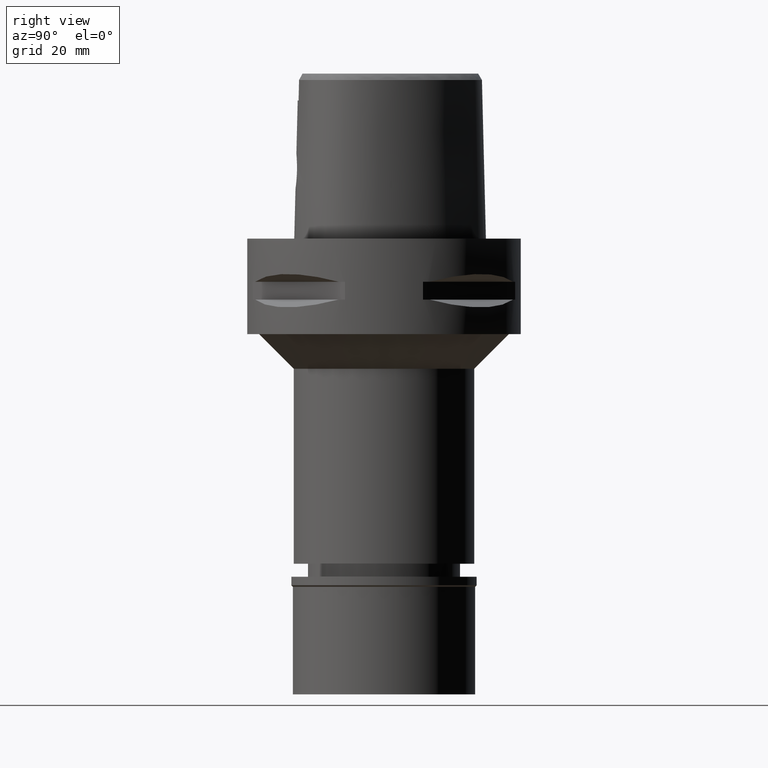
[diagram: clean part render]
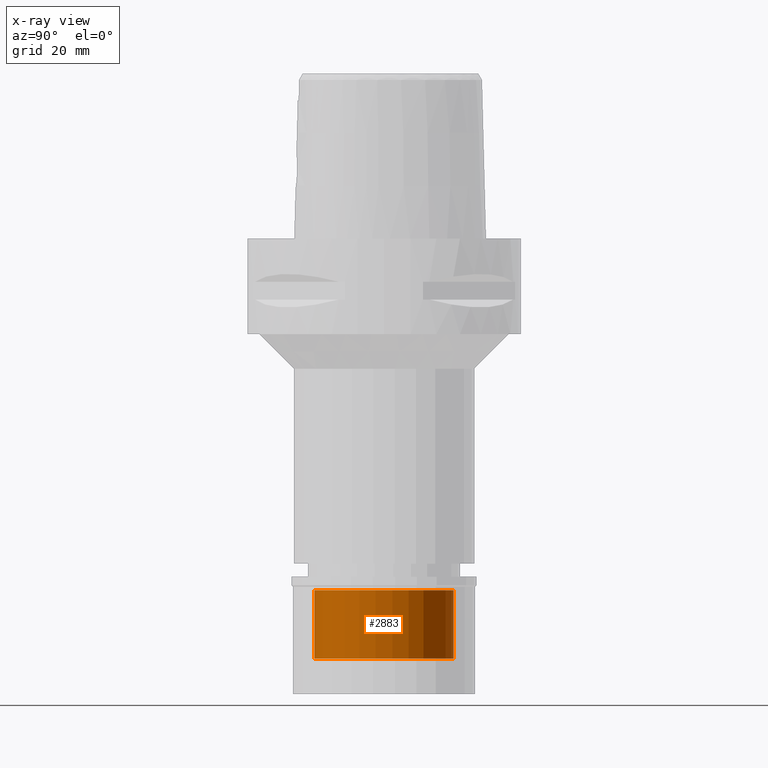
[diagram: x-ray — body ghosted, one internal face saturated and labeled with its STEP entity id]
A machine part, right view, then the same camera in x-ray: the body is ghosted and one INTERNAL B-rep face — a face not visible from any outside direction — is saturated and labeled: STEP entity #2883.
In plain terms, the highlighted cylindrical surface (partial cylindrical patch) has radius 16 mm, axis along (0, 0, -1).
Its self-contained STEP definition (entity closure, byte-faithful):
#23 = AXIS2_PLACEMENT_3D ( 'NONE', #4696, #2767, #3217 ) ;
#47 = LINE ( 'NONE', #880, #4343 ) ;
#496 = FACE_OUTER_BOUND ( 'NONE', #4438, .T. ) ;
#717 = CARTESIAN_POINT ( 'NONE',  ( 0.0000000000000000000, 0.0000000000000000000, -3.100000000000000089 ) ) ;
#750 = DIRECTION ( 'NONE',  ( 0.0000000000000000000, 0.0000000000000000000, 1.000000000000000000 ) ) ;
#776 = DIRECTION ( 'NONE',  ( 0.0000000000000000000, 0.0000000000000000000, 1.000000000000000000 ) ) ;
#880 = CARTESIAN_POINT ( 'NONE',  ( 0.0000000000000000000, 16.00000000000000000, -18.89999999999999858 ) ) ;
#882 = VERTEX_POINT ( 'NONE', #1737 ) ;
#1140 = CIRCLE ( 'NONE', #2095, 16.00000000000000000 ) ;
#1141 = ORIENTED_EDGE ( 'NONE', *, *, #2967, .T. ) ;
#1230 = EDGE_CURVE ( 'NONE', #2292, #4372, #1639, .T. ) ;
#1243 = CYLINDRICAL_SURFACE ( 'NONE', #23, 16.00000000000000000 ) ;
#1639 = LINE ( 'NONE', #2551, #3556 ) ;
#1664 = EDGE_CURVE ( 'NONE', #4372, #882, #1140, .T. ) ;
#1737 = CARTESIAN_POINT ( 'NONE',  ( 0.0000000000000000000, 16.00000000000000000, -3.100000000000000089 ) ) ;
#2027 = EDGE_CURVE ( 'NONE', #2519, #882, #47, .T. ) ;
#2095 = AXIS2_PLACEMENT_3D ( 'NONE', #717, #750, #2601 ) ;
#2292 = VERTEX_POINT ( 'NONE', #4749 ) ;
#2400 = ORIENTED_EDGE ( 'NONE', *, *, #2027, .F. ) ;
#2403 = ORIENTED_EDGE ( 'NONE', *, *, #1230, .T. ) ;
#2519 = VERTEX_POINT ( 'NONE', #2557 ) ;
#2551 = CARTESIAN_POINT ( 'NONE',  ( 0.0000000000000000000, -16.00000000000000000, -18.89999999999999858 ) ) ;
#2557 = CARTESIAN_POINT ( 'NONE',  ( 0.0000000000000000000, 16.00000000000000000, -18.89999999999999858 ) ) ;
#2601 = DIRECTION ( 'NONE',  ( 0.0000000000000000000, -1.000000000000000000, 0.0000000000000000000 ) ) ;
#2767 = DIRECTION ( 'NONE',  ( 0.0000000000000000000, 0.0000000000000000000, -1.000000000000000000 ) ) ;
#2821 = DIRECTION ( 'NONE',  ( 0.0000000000000000000, 0.0000000000000000000, 1.000000000000000000 ) ) ;
#2836 = CIRCLE ( 'NONE', #3310, 16.00000000000000000 ) ;
#2883 = ADVANCED_FACE ( 'NONE', ( #496 ), #1243, .F. ) ;
#2967 = EDGE_CURVE ( 'NONE', #2519, #2292, #2836, .T. ) ;
#3217 = DIRECTION ( 'NONE',  ( 0.0000000000000000000, -1.000000000000000000, 0.0000000000000000000 ) ) ;
#3310 = AXIS2_PLACEMENT_3D ( 'NONE', #4320, #3605, #4292 ) ;
#3556 = VECTOR ( 'NONE', #2821, 1000.000000000000000 ) ;
#3605 = DIRECTION ( 'NONE',  ( 0.0000000000000000000, 0.0000000000000000000, -1.000000000000000000 ) ) ;
#4292 = DIRECTION ( 'NONE',  ( 0.0000000000000000000, 1.000000000000000000, 0.0000000000000000000 ) ) ;
#4320 = CARTESIAN_POINT ( 'NONE',  ( 0.0000000000000000000, 0.0000000000000000000, -18.89999999999999858 ) ) ;
#4343 = VECTOR ( 'NONE', #776, 1000.000000000000000 ) ;
#4372 = VERTEX_POINT ( 'NONE', #4850 ) ;
#4426 = ORIENTED_EDGE ( 'NONE', *, *, #1664, .T. ) ;
#4438 = EDGE_LOOP ( 'NONE', ( #1141, #2403, #4426, #2400 ) ) ;
#4696 = CARTESIAN_POINT ( 'NONE',  ( 0.0000000000000000000, 0.0000000000000000000, 0.0000000000000000000 ) ) ;
#4749 = CARTESIAN_POINT ( 'NONE',  ( 0.0000000000000000000, -16.00000000000000000, -18.89999999999999858 ) ) ;
#4850 = CARTESIAN_POINT ( 'NONE',  ( 0.0000000000000000000, -16.00000000000000000, -3.100000000000000089 ) ) ;